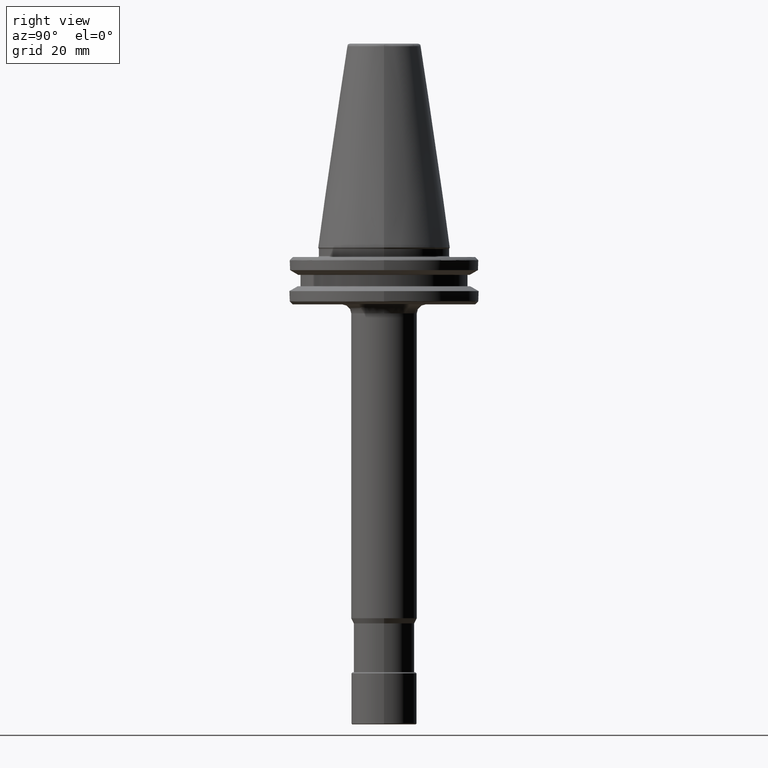
[diagram: clean part render]
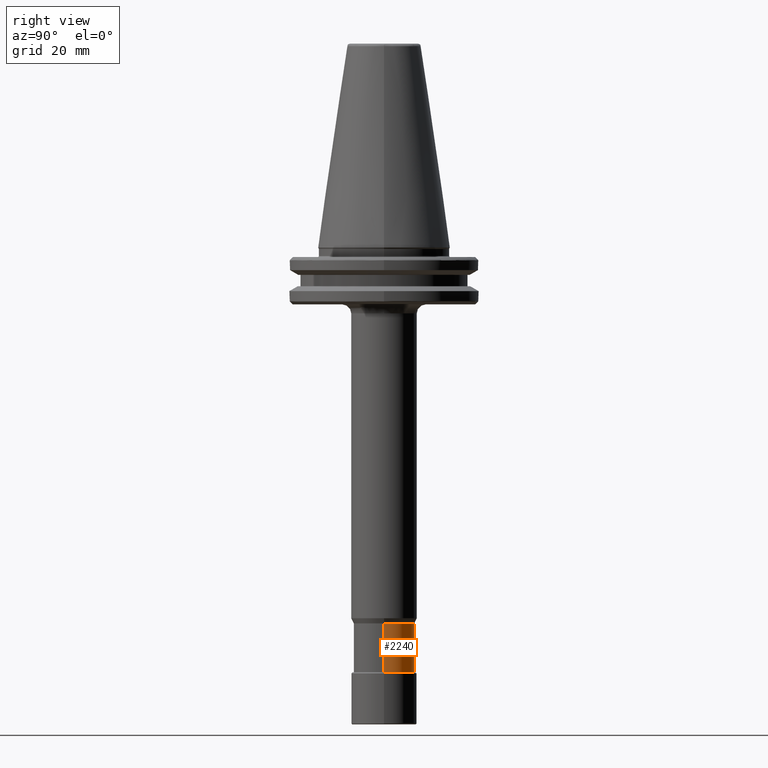
[diagram: same view with one face highlighted and labeled with its STEP entity id]
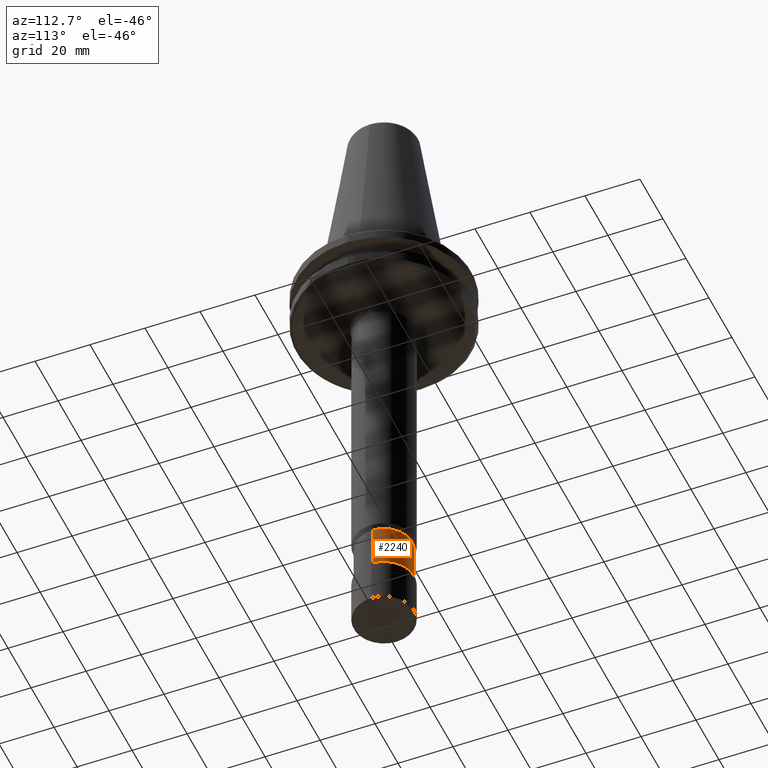
[diagram: same view with one face highlighted and labeled with its STEP entity id]
A machine part, right view. The second image highlights one B-rep face of the part: STEP entity #2240.
A second angle (auxiliary view) of the same face is appended — the face is thin or edge-on in the first view.
In plain terms, the highlighted cylindrical surface (edge-blend (fillet) strip) has radius 10.2 mm, axis along (0, 0, 1).
Its self-contained STEP definition (entity closure, byte-faithful):
#14 = CIRCLE ( 'NONE', #1284, 10.19999999999999900 ) ;
#22 = EDGE_CURVE ( 'NONE', #1681, #2675, #55, .T. ) ;
#45 = EDGE_CURVE ( 'NONE', #3121, #2675, #558, .T. ) ;
#55 = LINE ( 'NONE', #1593, #2188 ) ;
#81 = AXIS2_PLACEMENT_3D ( 'NONE', #3221, #3009, #3369 ) ;
#459 = ORIENTED_EDGE ( 'NONE', *, *, #954, .F. ) ;
#461 = DIRECTION ( 'NONE',  ( 0.0000000000000000000, 0.0000000000000000000, 1.000000000000000000 ) ) ;
#536 = EDGE_CURVE ( 'NONE', #1681, #1814, #14, .T. ) ;
#558 = CIRCLE ( 'NONE', #2959, 10.19999999999999900 ) ;
#750 = FACE_OUTER_BOUND ( 'NONE', #2802, .T. ) ;
#769 = DIRECTION ( 'NONE',  ( -0.0000000000000000000, -0.0000000000000000000, -1.000000000000000000 ) ) ;
#954 = EDGE_CURVE ( 'NONE', #1814, #3121, #1236, .T. ) ;
#959 = VECTOR ( 'NONE', #461, 1000.000000000000000 ) ;
#1236 = LINE ( 'NONE', #3235, #959 ) ;
#1284 = AXIS2_PLACEMENT_3D ( 'NONE', #1679, #769, #2015 ) ;
#1593 = CARTESIAN_POINT ( 'NONE',  ( -10.19999999999999900, 1.249139735130300200E-015, -142.5000000000000300 ) ) ;
#1617 = CYLINDRICAL_SURFACE ( 'NONE', #81, 10.19999999999999900 ) ;
#1679 = CARTESIAN_POINT ( 'NONE',  ( 0.0000000000000000000, 0.0000000000000000000, -142.5000000000000300 ) ) ;
#1681 = VERTEX_POINT ( 'NONE', #3379 ) ;
#1688 = CARTESIAN_POINT ( 'NONE',  ( -10.19999999999999900, 1.298125607096194400E-015, -126.1156055359999900 ) ) ;
#1814 = VERTEX_POINT ( 'NONE', #2210 ) ;
#1908 = DIRECTION ( 'NONE',  ( 0.0000000000000000000, 0.0000000000000000000, 1.000000000000000000 ) ) ;
#2015 = DIRECTION ( 'NONE',  ( 1.000000000000000000, 0.0000000000000000000, 0.0000000000000000000 ) ) ;
#2039 = ORIENTED_EDGE ( 'NONE', *, *, #22, .T. ) ;
#2097 = ORIENTED_EDGE ( 'NONE', *, *, #536, .F. ) ;
#2136 = DIRECTION ( 'NONE',  ( 1.000000000000000000, 0.0000000000000000000, 0.0000000000000000000 ) ) ;
#2188 = VECTOR ( 'NONE', #2444, 1000.000000000000000 ) ;
#2210 = CARTESIAN_POINT ( 'NONE',  ( 10.19999999999999900, 0.0000000000000000000, -142.5000000000000300 ) ) ;
#2240 = ADVANCED_FACE ( 'NONE', ( #750 ), #1617, .T. ) ;
#2444 = DIRECTION ( 'NONE',  ( 0.0000000000000000000, 0.0000000000000000000, 1.000000000000000000 ) ) ;
#2455 = CARTESIAN_POINT ( 'NONE',  ( 0.0000000000000000000, 0.0000000000000000000, -126.1156055359999900 ) ) ;
#2650 = ORIENTED_EDGE ( 'NONE', *, *, #45, .F. ) ;
#2675 = VERTEX_POINT ( 'NONE', #1688 ) ;
#2802 = EDGE_LOOP ( 'NONE', ( #2097, #2039, #2650, #459 ) ) ;
#2959 = AXIS2_PLACEMENT_3D ( 'NONE', #2455, #1908, #2136 ) ;
#3009 = DIRECTION ( 'NONE',  ( 0.0000000000000000000, 0.0000000000000000000, 1.000000000000000000 ) ) ;
#3121 = VERTEX_POINT ( 'NONE', #3256 ) ;
#3221 = CARTESIAN_POINT ( 'NONE',  ( 0.0000000000000000000, 0.0000000000000000000, -142.5000000000000300 ) ) ;
#3235 = CARTESIAN_POINT ( 'NONE',  ( 10.19999999999999900, 0.0000000000000000000, -142.5000000000000300 ) ) ;
#3256 = CARTESIAN_POINT ( 'NONE',  ( 10.19999999999999900, 0.0000000000000000000, -126.1156055359999900 ) ) ;
#3369 = DIRECTION ( 'NONE',  ( 1.000000000000000000, 0.0000000000000000000, 0.0000000000000000000 ) ) ;
#3379 = CARTESIAN_POINT ( 'NONE',  ( -10.19999999999999900, 1.249139735130300200E-015, -142.5000000000000300 ) ) ;